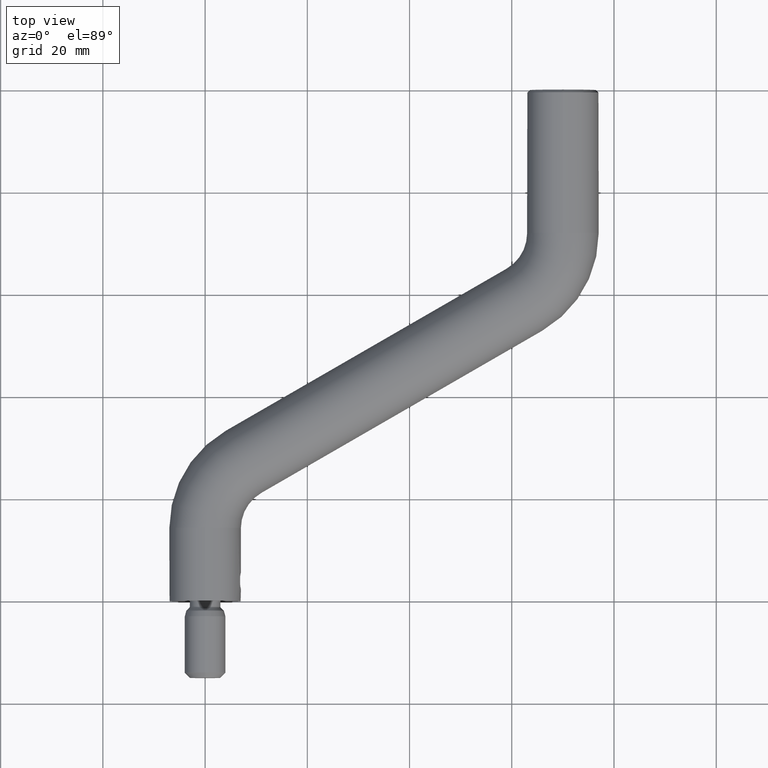
[diagram: clean part render]
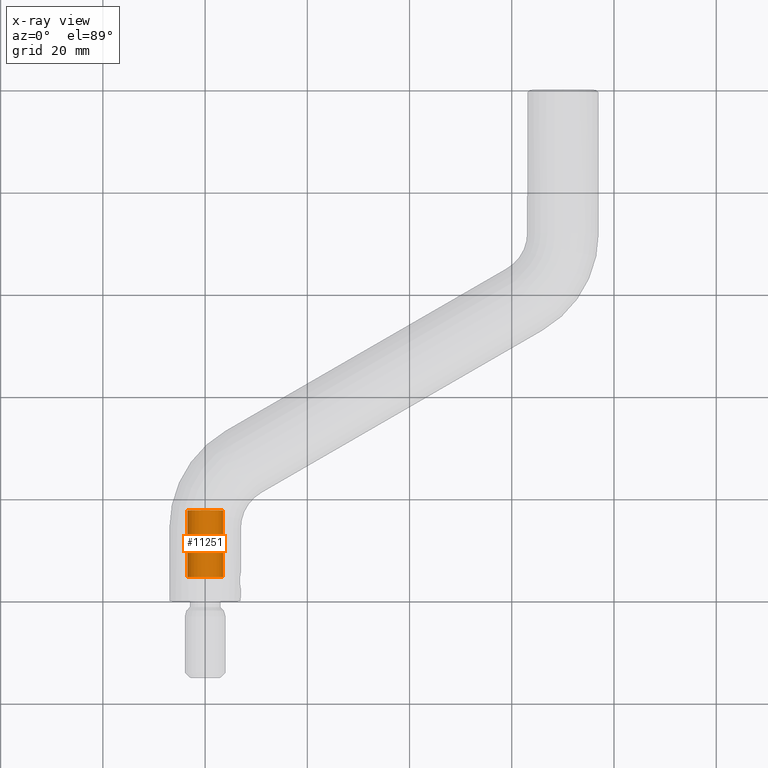
[diagram: x-ray — body ghosted, one internal face saturated and labeled with its STEP entity id]
A machine part, top view, then the same camera in x-ray: the body is ghosted and one INTERNAL B-rep face — a face not visible from any outside direction — is saturated and labeled: STEP entity #11251.
In plain terms, the highlighted cylindrical surface (edge-blend (fillet) strip) has radius 3.5 mm, axis along (-0, -1, -0).
Its self-contained STEP definition (entity closure, byte-faithful):
#115 = CARTESIAN_POINT ( 'NONE',  ( 0.0000000000000000000, 4.649999999999995000, 0.0000000000000000000 ) ) ;
#1191 = EDGE_LOOP ( 'NONE', ( #6136, #13403, #7888, #8962, #2643 ) ) ;
#1481 = VECTOR ( 'NONE', #4263, 1000.000000000000000 ) ;
#1545 = DIRECTION ( 'NONE',  ( -1.156482317317871500E-016, -1.000000000000000000, -0.0000000000000000000 ) ) ;
#1865 = CARTESIAN_POINT ( 'NONE',  ( -3.499999999999997800, 17.74999999999999600, 4.286263797015736600E-016 ) ) ;
#2225 = CARTESIAN_POINT ( 'NONE',  ( 3.500000000000002200, 17.74999999999999600, 0.0000000000000000000 ) ) ;
#2360 = DIRECTION ( 'NONE',  ( 0.0000000000000000000, 0.0000000000000000000, -1.000000000000000000 ) ) ;
#2533 = AXIS2_PLACEMENT_3D ( 'NONE', #7765, #6766, #11476 ) ;
#2643 = ORIENTED_EDGE ( 'NONE', *, *, #4118, .F. ) ;
#3426 = LINE ( 'NONE', #9817, #1481 ) ;
#3443 = DIRECTION ( 'NONE',  ( -0.0000000000000000000, -1.000000000000000000, -0.0000000000000000000 ) ) ;
#3964 = VERTEX_POINT ( 'NONE', #4935 ) ;
#4118 = EDGE_CURVE ( 'NONE', #10929, #11046, #3426, .T. ) ;
#4263 = DIRECTION ( 'NONE',  ( -1.156482317317871500E-016, -1.000000000000000000, -0.0000000000000000000 ) ) ;
#4935 = CARTESIAN_POINT ( 'NONE',  ( 0.0000000000000000000, 4.649999999999995000, 3.499999999999999600 ) ) ;
#5473 = AXIS2_PLACEMENT_3D ( 'NONE', #5503, #5589, #8913 ) ;
#5503 = CARTESIAN_POINT ( 'NONE',  ( 2.081668171172168500E-015, 18.00000000000000000, 0.0000000000000000000 ) ) ;
#5589 = DIRECTION ( 'NONE',  ( -1.156482317317871500E-016, -1.000000000000000000, -0.0000000000000000000 ) ) ;
#6136 = ORIENTED_EDGE ( 'NONE', *, *, #10069, .T. ) ;
#6483 = DIRECTION ( 'NONE',  ( 0.0000000000000000000, 0.0000000000000000000, -1.000000000000000000 ) ) ;
#6766 = DIRECTION ( 'NONE',  ( -1.156482317317865600E-016, -1.000000000000000000, 0.0000000000000000000 ) ) ;
#7319 = VECTOR ( 'NONE', #1545, 1000.000000000000000 ) ;
#7765 = CARTESIAN_POINT ( 'NONE',  ( 2.052756113239221200E-015, 17.74999999999999600, 0.0000000000000000000 ) ) ;
#7888 = ORIENTED_EDGE ( 'NONE', *, *, #12906, .F. ) ;
#8484 = EDGE_CURVE ( 'NONE', #11046, #3964, #10058, .T. ) ;
#8544 = CYLINDRICAL_SURFACE ( 'NONE', #5473, 3.500000000000000000 ) ;
#8589 = DIRECTION ( 'NONE',  ( -0.0000000000000000000, -1.000000000000000000, -0.0000000000000000000 ) ) ;
#8737 = CARTESIAN_POINT ( 'NONE',  ( -3.499999999999999600, 4.649999999999995000, 4.286263797015737100E-016 ) ) ;
#8752 = CIRCLE ( 'NONE', #2533, 3.500000000000000000 ) ;
#8913 = DIRECTION ( 'NONE',  ( 1.000000000000000000, 0.0000000000000000000, 0.0000000000000000000 ) ) ;
#8962 = ORIENTED_EDGE ( 'NONE', *, *, #8484, .F. ) ;
#9233 = CARTESIAN_POINT ( 'NONE',  ( -3.499999999999997800, 18.00000000000000000, 4.286263797015736600E-016 ) ) ;
#9817 = CARTESIAN_POINT ( 'NONE',  ( 3.500000000000002200, 18.00000000000000000, 0.0000000000000000000 ) ) ;
#10058 = CIRCLE ( 'NONE', #11424, 3.499999999999999600 ) ;
#10069 = EDGE_CURVE ( 'NONE', #10929, #11177, #8752, .T. ) ;
#10357 = CARTESIAN_POINT ( 'NONE',  ( 3.499999999999999600, 4.649999999999995000, 0.0000000000000000000 ) ) ;
#10408 = AXIS2_PLACEMENT_3D ( 'NONE', #12857, #8589, #6483 ) ;
#10630 = LINE ( 'NONE', #9233, #7319 ) ;
#10929 = VERTEX_POINT ( 'NONE', #2225 ) ;
#11046 = VERTEX_POINT ( 'NONE', #10357 ) ;
#11177 = VERTEX_POINT ( 'NONE', #1865 ) ;
#11251 = ADVANCED_FACE ( 'NONE', ( #12541 ), #8544, .T. ) ;
#11396 = EDGE_CURVE ( 'NONE', #11177, #11678, #10630, .T. ) ;
#11424 = AXIS2_PLACEMENT_3D ( 'NONE', #115, #3443, #2360 ) ;
#11476 = DIRECTION ( 'NONE',  ( -1.000000000000000000, 0.0000000000000000000, 0.0000000000000000000 ) ) ;
#11678 = VERTEX_POINT ( 'NONE', #8737 ) ;
#12541 = FACE_OUTER_BOUND ( 'NONE', #1191, .T. ) ;
#12857 = CARTESIAN_POINT ( 'NONE',  ( 0.0000000000000000000, 4.649999999999995000, 0.0000000000000000000 ) ) ;
#12906 = EDGE_CURVE ( 'NONE', #3964, #11678, #14068, .T. ) ;
#13403 = ORIENTED_EDGE ( 'NONE', *, *, #11396, .T. ) ;
#14068 = CIRCLE ( 'NONE', #10408, 3.499999999999999600 ) ;